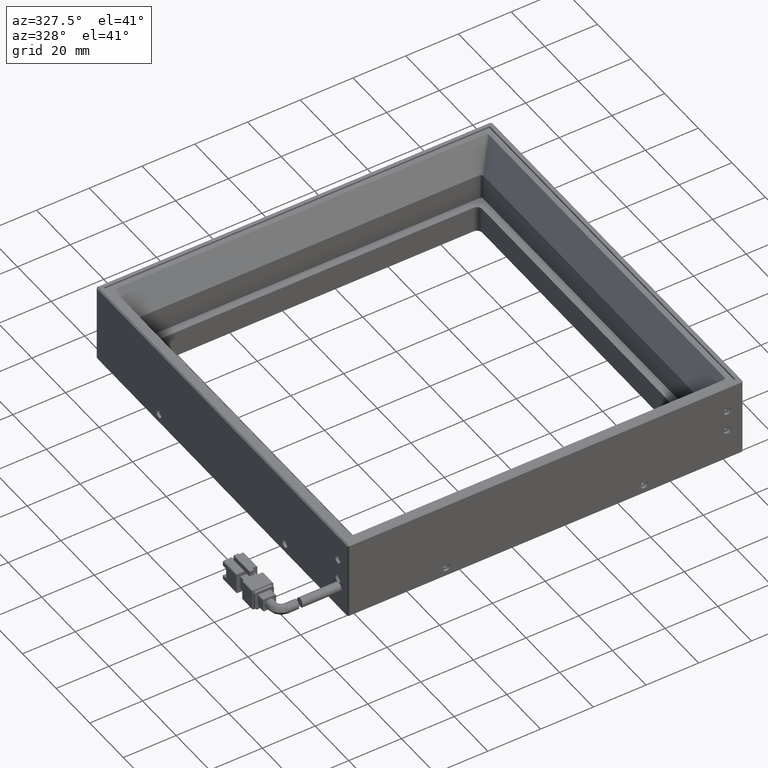
[diagram: clean part render]
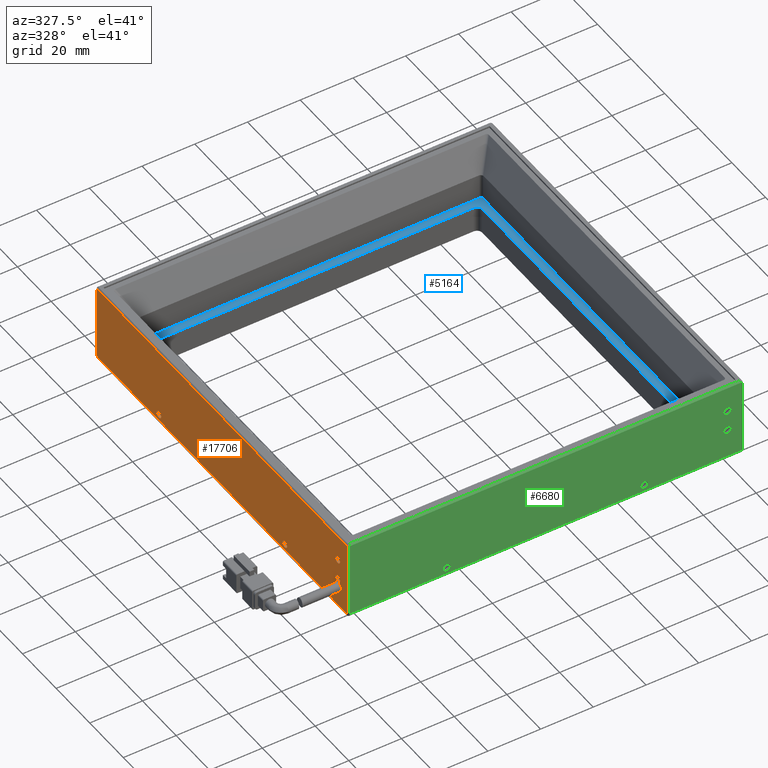
[diagram: same view with three faces highlighted in distinct colors, each labeled with its STEP entity id]
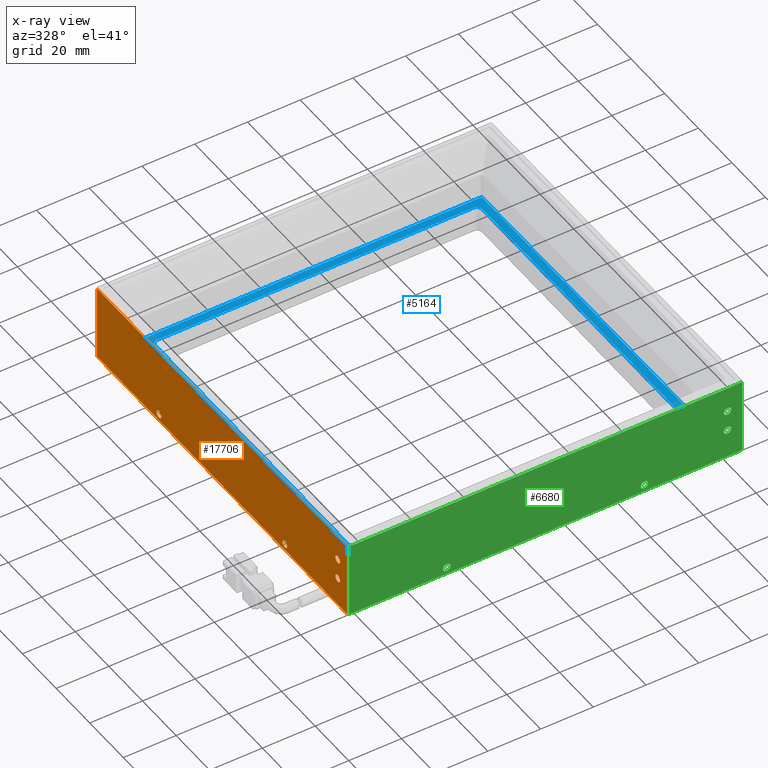
[diagram: x-ray of the same camera — body ghosted, the three highlighted faces saturated]
A machine part, auxiliary view with three faces highlighted in distinct colors.
The next image is the same camera in x-ray (body ghosted, the three faces saturated) — at least one of them is partly hidden behind the body in this view.
Their STEP definitions:

[orange] entity #17706 — the highlighted planar face has unit normal (1, -0, -0).
#393 = ORIENTED_EDGE ( 'NONE', *, *, #6799, .T. ) ;
#505 = CARTESIAN_POINT ( 'NONE',  ( -84.83175061932287500, -58.25061932287366100, 16.40000000000005500 ) ) ;
#970 = CARTESIAN_POINT ( 'NONE',  ( -84.83175061932288900, 48.24938067712633200, -1.499999999999942300 ) ) ;
#1053 = DIRECTION ( 'NONE',  ( -1.850371707708597500E-017, -1.000000000000000000, 0.0000000000000000000 ) ) ;
#1247 = DIRECTION ( 'NONE',  ( 0.0000000000000000000, 0.0000000000000000000, 1.000000000000000000 ) ) ;
#1317 = DIRECTION ( 'NONE',  ( -1.000000000000000000, -1.665334536937734600E-016, 0.0000000000000000000 ) ) ;
#1395 = CARTESIAN_POINT ( 'NONE',  ( -84.83175061932287500, -58.25061932287366100, 15.00000000000006200 ) ) ;
#1593 = AXIS2_PLACEMENT_3D ( 'NONE', #16673, #16606, #16443 ) ;
#1629 = DIRECTION ( 'NONE',  ( 0.0000000000000000000, 0.0000000000000000000, 1.000000000000000000 ) ) ;
#1833 = CIRCLE ( 'NONE', #19581, 1.399999999999991500 ) ;
#1950 = EDGE_LOOP ( 'NONE', ( #7730, #14834 ) ) ;
#2025 = CARTESIAN_POINT ( 'NONE',  ( -84.83175061932287500, -26.75061932287366800, -1.499999999999942300 ) ) ;
#2094 = EDGE_CURVE ( 'NONE', #7687, #20565, #20294, .T. ) ;
#2137 = CARTESIAN_POINT ( 'NONE',  ( -84.83175061932287500, 85.24938067712629700, -3.999999999999937800 ) ) ;
#2164 = VERTEX_POINT ( 'NONE', #18636 ) ;
#2362 = DIRECTION ( 'NONE',  ( 0.0000000000000000000, 0.0000000000000000000, 1.000000000000000000 ) ) ;
#2406 = CARTESIAN_POINT ( 'NONE',  ( -84.83175061932287500, 85.74938067712629700, -3.999999999999937800 ) ) ;
#2433 = DIRECTION ( 'NONE',  ( 1.665334536937734600E-016, -1.000000000000000000, -0.0000000000000000000 ) ) ;
#2488 = EDGE_LOOP ( 'NONE', ( #12058, #9845 ) ) ;
#2856 = ORIENTED_EDGE ( 'NONE', *, *, #3493, .F. ) ;
#3493 = EDGE_CURVE ( 'NONE', #20805, #12843, #21126, .T. ) ;
#3740 = DIRECTION ( 'NONE',  ( 0.0000000000000000000, 0.0000000000000000000, 1.000000000000000000 ) ) ;
#4072 = VERTEX_POINT ( 'NONE', #4802 ) ;
#4275 = FACE_BOUND ( 'NONE', #2488, .T. ) ;
#4362 = CARTESIAN_POINT ( 'NONE',  ( -84.83175061932287500, -26.75061932287366800, -0.09999999999995082300 ) ) ;
#4419 = VERTEX_POINT ( 'NONE', #18399 ) ;
#4802 = CARTESIAN_POINT ( 'NONE',  ( -84.83175061932287500, -58.25061932287366100, 5.600000000000067100 ) ) ;
#4868 = DIRECTION ( 'NONE',  ( -1.000000000000000000, -1.665334536937734600E-016, 0.0000000000000000000 ) ) ;
#4872 = EDGE_CURVE ( 'NONE', #16739, #9918, #6531, .T. ) ;
#5144 = CARTESIAN_POINT ( 'NONE',  ( -84.83175061932287500, -58.25061932287366100, 7.000000000000062200 ) ) ;
#5819 = EDGE_CURVE ( 'NONE', #9918, #16739, #6164, .T. ) ;
#6164 = CIRCLE ( 'NONE', #12648, 1.399999999999995000 ) ;
#6531 = CIRCLE ( 'NONE', #1593, 1.399999999999995000 ) ;
#6632 = EDGE_CURVE ( 'NONE', #6823, #20805, #15737, .T. ) ;
#6799 = EDGE_CURVE ( 'NONE', #6823, #2164, #17788, .T. ) ;
#6800 = VECTOR ( 'NONE', #15033, 1000.000000000000000 ) ;
#6823 = VERTEX_POINT ( 'NONE', #2137 ) ;
#6861 = DIRECTION ( 'NONE',  ( 0.0000000000000000000, 0.0000000000000000000, 1.000000000000000000 ) ) ;
#7653 = EDGE_CURVE ( 'NONE', #14814, #4072, #15654, .T. ) ;
#7687 = VERTEX_POINT ( 'NONE', #21048 ) ;
#7730 = ORIENTED_EDGE ( 'NONE', *, *, #15591, .F. ) ;
#7736 = ORIENTED_EDGE ( 'NONE', *, *, #7653, .F. ) ;
#8505 = CARTESIAN_POINT ( 'NONE',  ( -84.83175061932287500, -63.75061932287366800, -3.999999999999937800 ) ) ;
#8765 = FACE_BOUND ( 'NONE', #1950, .T. ) ;
#9371 = ORIENTED_EDGE ( 'NONE', *, *, #14551, .F. ) ;
#9492 = AXIS2_PLACEMENT_3D ( 'NONE', #21750, #11758, #1629 ) ;
#9845 = ORIENTED_EDGE ( 'NONE', *, *, #21769, .F. ) ;
#9918 = VERTEX_POINT ( 'NONE', #505 ) ;
#10208 = DIRECTION ( 'NONE',  ( 0.0000000000000000000, 0.0000000000000000000, -1.000000000000000000 ) ) ;
#11134 = CARTESIAN_POINT ( 'NONE',  ( -84.83175061932287500, -58.25061932287366100, 13.60000000000006700 ) ) ;
#11194 = DIRECTION ( 'NONE',  ( 1.000000000000000000, -1.850371707708597500E-017, -0.0000000000000000000 ) ) ;
#11382 = CARTESIAN_POINT ( 'NONE',  ( -84.83175061932288900, 48.24938067712633200, -2.899999999999940800 ) ) ;
#11473 = AXIS2_PLACEMENT_3D ( 'NONE', #2025, #13812, #3740 ) ;
#11758 = DIRECTION ( 'NONE',  ( -1.000000000000000000, -1.665334536937734600E-016, 0.0000000000000000000 ) ) ;
#11908 = CIRCLE ( 'NONE', #9492, 1.399999999999998600 ) ;
#12058 = ORIENTED_EDGE ( 'NONE', *, *, #2094, .F. ) ;
#12539 = CIRCLE ( 'NONE', #11473, 1.399999999999991500 ) ;
#12648 = AXIS2_PLACEMENT_3D ( 'NONE', #1395, #1317, #1247 ) ;
#12751 = CARTESIAN_POINT ( 'NONE',  ( -84.83175061932284700, -63.75061932287366800, 24.70000000000009500 ) ) ;
#12843 = VERTEX_POINT ( 'NONE', #12751 ) ;
#12861 = VECTOR ( 'NONE', #2433, 1000.000000000000000 ) ;
#13225 = FACE_OUTER_BOUND ( 'NONE', #13276, .T. ) ;
#13276 = EDGE_LOOP ( 'NONE', ( #2856, #17835, #393, #9371 ) ) ;
#13544 = ORIENTED_EDGE ( 'NONE', *, *, #5819, .F. ) ;
#13812 = DIRECTION ( 'NONE',  ( -1.000000000000000000, -1.665334536937734600E-016, 0.0000000000000000000 ) ) ;
#14345 = AXIS2_PLACEMENT_3D ( 'NONE', #20910, #20707, #20586 ) ;
#14385 = CARTESIAN_POINT ( 'NONE',  ( -84.83175061932287500, -58.25061932287366100, 8.400000000000057200 ) ) ;
#14409 = PLANE ( 'NONE',  #16028 ) ;
#14551 = EDGE_CURVE ( 'NONE', #12843, #2164, #19404, .T. ) ;
#14814 = VERTEX_POINT ( 'NONE', #14385 ) ;
#14834 = ORIENTED_EDGE ( 'NONE', *, *, #15142, .F. ) ;
#14920 = VECTOR ( 'NONE', #10208, 1000.000000000000000 ) ;
#14924 = CARTESIAN_POINT ( 'NONE',  ( -84.83175061932287500, -26.75061932287366800, -1.499999999999942300 ) ) ;
#15013 = CARTESIAN_POINT ( 'NONE',  ( -84.83175061932287500, 85.24938067712629700, -3.999999999999937800 ) ) ;
#15033 = DIRECTION ( 'NONE',  ( -0.0000000000000000000, -0.0000000000000000000, 1.000000000000000000 ) ) ;
#15142 = EDGE_CURVE ( 'NONE', #4419, #17759, #12539, .T. ) ;
#15591 = EDGE_CURVE ( 'NONE', #17759, #4419, #1833, .T. ) ;
#15609 = EDGE_LOOP ( 'NONE', ( #13544, #17867 ) ) ;
#15654 = CIRCLE ( 'NONE', #14345, 1.399999999999995000 ) ;
#15737 = LINE ( 'NONE', #15013, #6800 ) ;
#15804 = AXIS2_PLACEMENT_3D ( 'NONE', #970, #19079, #2362 ) ;
#16028 = AXIS2_PLACEMENT_3D ( 'NONE', #21185, #11194, #1053 ) ;
#16389 = EDGE_LOOP ( 'NONE', ( #7736, #18077 ) ) ;
#16443 = DIRECTION ( 'NONE',  ( 0.0000000000000000000, 0.0000000000000000000, 1.000000000000000000 ) ) ;
#16606 = DIRECTION ( 'NONE',  ( -1.000000000000000000, -1.665334536937734600E-016, 0.0000000000000000000 ) ) ;
#16618 = DIRECTION ( 'NONE',  ( 0.0000000000000000000, 0.0000000000000000000, 1.000000000000000000 ) ) ;
#16632 = VECTOR ( 'NONE', #20395, 1000.000000000000000 ) ;
#16673 = CARTESIAN_POINT ( 'NONE',  ( -84.83175061932287500, -58.25061932287366100, 15.00000000000006200 ) ) ;
#16739 = VERTEX_POINT ( 'NONE', #11134 ) ;
#16905 = DIRECTION ( 'NONE',  ( -1.000000000000000000, -1.665334536937734600E-016, 0.0000000000000000000 ) ) ;
#16954 = EDGE_CURVE ( 'NONE', #4072, #14814, #19314, .T. ) ;
#17642 = FACE_BOUND ( 'NONE', #15609, .T. ) ;
#17706 = ADVANCED_FACE ( 'NONE', ( #13225, #4275, #8765, #17642, #21611 ), #14409, .F. ) ;
#17759 = VERTEX_POINT ( 'NONE', #4362 ) ;
#17788 = LINE ( 'NONE', #2406, #12861 ) ;
#17835 = ORIENTED_EDGE ( 'NONE', *, *, #6632, .F. ) ;
#17867 = ORIENTED_EDGE ( 'NONE', *, *, #4872, .F. ) ;
#18077 = ORIENTED_EDGE ( 'NONE', *, *, #16954, .F. ) ;
#18399 = CARTESIAN_POINT ( 'NONE',  ( -84.83175061932287500, -26.75061932287366800, -2.899999999999933700 ) ) ;
#18568 = CARTESIAN_POINT ( 'NONE',  ( -84.83175061932287500, 85.24938067712629700, 24.70000000000009200 ) ) ;
#18636 = CARTESIAN_POINT ( 'NONE',  ( -84.83175061932284700, -63.75061932287366800, -3.999999999999937800 ) ) ;
#19079 = DIRECTION ( 'NONE',  ( -1.000000000000000000, -1.665334536937734600E-016, 0.0000000000000000000 ) ) ;
#19271 = AXIS2_PLACEMENT_3D ( 'NONE', #5144, #16905, #6861 ) ;
#19314 = CIRCLE ( 'NONE', #19271, 1.399999999999995000 ) ;
#19404 = LINE ( 'NONE', #8505, #14920 ) ;
#19581 = AXIS2_PLACEMENT_3D ( 'NONE', #14924, #4868, #16618 ) ;
#20294 = CIRCLE ( 'NONE', #15804, 1.399999999999998600 ) ;
#20395 = DIRECTION ( 'NONE',  ( -1.850371707708597500E-017, -1.000000000000000000, 0.0000000000000000000 ) ) ;
#20565 = VERTEX_POINT ( 'NONE', #11382 ) ;
#20586 = DIRECTION ( 'NONE',  ( 0.0000000000000000000, 0.0000000000000000000, 1.000000000000000000 ) ) ;
#20707 = DIRECTION ( 'NONE',  ( -1.000000000000000000, -1.665334536937734600E-016, 0.0000000000000000000 ) ) ;
#20805 = VERTEX_POINT ( 'NONE', #18568 ) ;
#20910 = CARTESIAN_POINT ( 'NONE',  ( -84.83175061932287500, -58.25061932287366100, 7.000000000000062200 ) ) ;
#21048 = CARTESIAN_POINT ( 'NONE',  ( -84.83175061932288900, 48.24938067712633200, -0.09999999999994366200 ) ) ;
#21126 = LINE ( 'NONE', #21755, #16632 ) ;
#21185 = CARTESIAN_POINT ( 'NONE',  ( -84.83175061932287500, -64.25061932287366100, -3.999999999999937800 ) ) ;
#21611 = FACE_BOUND ( 'NONE', #16389, .T. ) ;
#21750 = CARTESIAN_POINT ( 'NONE',  ( -84.83175061932288900, 48.24938067712633200, -1.499999999999942300 ) ) ;
#21755 = CARTESIAN_POINT ( 'NONE',  ( -84.83175061932287500, -64.25061932287366100, 24.70000000000009200 ) ) ;
#21769 = EDGE_CURVE ( 'NONE', #20565, #7687, #11908, .T. ) ;

[blue] entity #5164 — the highlighted planar face has unit normal (-0, 0, 1).
#629 = CARTESIAN_POINT ( 'NONE',  ( -69.83175061932287500, -49.25061932287366800, 5.000000000000061300 ) ) ;
#734 = FACE_OUTER_BOUND ( 'NONE', #4740, .T. ) ;
#834 = VERTEX_POINT ( 'NONE', #10461 ) ;
#886 = DIRECTION ( 'NONE',  ( 1.000000000000000000, 0.0000000000000000000, 0.0000000000000000000 ) ) ;
#1521 = CARTESIAN_POINT ( 'NONE',  ( 55.16824938067716000, -54.25061932287367500, 5.000000000000061300 ) ) ;
#1550 = CARTESIAN_POINT ( 'NONE',  ( -71.83175061932287500, -51.25061932287366800, 5.000000000000061300 ) ) ;
#1855 = ORIENTED_EDGE ( 'NONE', *, *, #3061, .F. ) ;
#1888 = CARTESIAN_POINT ( 'NONE',  ( -69.83175061932284700, 72.74938067712632500, 5.000000000000061300 ) ) ;
#2302 = DIRECTION ( 'NONE',  ( 1.000000000000000000, 0.0000000000000000000, 0.0000000000000000000 ) ) ;
#2554 = CARTESIAN_POINT ( 'NONE',  ( -74.83175061932286100, -54.25061932287367500, 5.000000000000061300 ) ) ;
#2748 = LINE ( 'NONE', #14880, #19580 ) ;
#3061 = EDGE_CURVE ( 'NONE', #16341, #10839, #19112, .T. ) ;
#3176 = CARTESIAN_POINT ( 'NONE',  ( 50.16824938067718200, 72.74938067712632500, 5.000000000000061300 ) ) ;
#3276 = CARTESIAN_POINT ( 'NONE',  ( -71.83175061932284700, 72.74938067712632500, 5.000000000000061300 ) ) ;
#3289 = DIRECTION ( 'NONE',  ( 1.000000000000000000, 0.0000000000000000000, -0.0000000000000000000 ) ) ;
#3765 = VECTOR ( 'NONE', #12660, 1000.000000000000000 ) ;
#3770 = AXIS2_PLACEMENT_3D ( 'NONE', #15370, #15008, #14932 ) ;
#3926 = EDGE_CURVE ( 'NONE', #21743, #15298, #6598, .T. ) ;
#4062 = CIRCLE ( 'NONE', #20011, 2.000000000000001800 ) ;
#4251 = CARTESIAN_POINT ( 'NONE',  ( 55.16824938067714600, 75.74938067712633900, 5.000000000000061300 ) ) ;
#4253 = ORIENTED_EDGE ( 'NONE', *, *, #20275, .F. ) ;
#4266 = LINE ( 'NONE', #3276, #21594 ) ;
#4431 = VERTEX_POINT ( 'NONE', #18315 ) ;
#4740 = EDGE_LOOP ( 'NONE', ( #8745, #12700, #17064, #11772 ) ) ;
#4764 = AXIS2_PLACEMENT_3D ( 'NONE', #21016, #11014, #886 ) ;
#5113 = VECTOR ( 'NONE', #7913, 1000.000000000000000 ) ;
#5164 = ADVANCED_FACE ( 'NONE', ( #13627, #734 ), #7789, .T. ) ;
#5498 = ORIENTED_EDGE ( 'NONE', *, *, #19022, .T. ) ;
#5509 = EDGE_CURVE ( 'NONE', #21743, #17511, #7806, .T. ) ;
#5531 = DIRECTION ( 'NONE',  ( 1.000000000000000000, 0.0000000000000000000, 0.0000000000000000000 ) ) ;
#5604 = DIRECTION ( 'NONE',  ( -0.0000000000000000000, 0.0000000000000000000, 1.000000000000000000 ) ) ;
#5745 = CARTESIAN_POINT ( 'NONE',  ( -74.83175061932284700, -54.25061932287367500, 5.000000000000061300 ) ) ;
#6598 = CIRCLE ( 'NONE', #3770, 2.000000000000001800 ) ;
#6702 = CIRCLE ( 'NONE', #21293, 2.000000000000001800 ) ;
#6945 = CARTESIAN_POINT ( 'NONE',  ( -69.83175061932284700, 70.74938067712632500, 5.000000000000061300 ) ) ;
#7300 = EDGE_LOOP ( 'NONE', ( #8527, #20093, #13757, #11932, #4253, #5498, #1855, #18701 ) ) ;
#7789 = PLANE ( 'NONE',  #12090 ) ;
#7806 = LINE ( 'NONE', #20713, #12314 ) ;
#7913 = DIRECTION ( 'NONE',  ( -1.000000000000000000, -0.0000000000000000000, -0.0000000000000000000 ) ) ;
#8527 = ORIENTED_EDGE ( 'NONE', *, *, #5509, .F. ) ;
#8546 = LINE ( 'NONE', #1550, #16906 ) ;
#8655 = DIRECTION ( 'NONE',  ( 1.000000000000000000, 0.0000000000000000000, 0.0000000000000000000 ) ) ;
#8745 = ORIENTED_EDGE ( 'NONE', *, *, #11545, .T. ) ;
#9465 = VERTEX_POINT ( 'NONE', #20518 ) ;
#9603 = LINE ( 'NONE', #1521, #18491 ) ;
#10461 = CARTESIAN_POINT ( 'NONE',  ( 55.16824938067714600, -54.25061932287367500, 5.000000000000061300 ) ) ;
#10839 = VERTEX_POINT ( 'NONE', #1888 ) ;
#11014 = DIRECTION ( 'NONE',  ( -0.0000000000000000000, -0.0000000000000000000, -1.000000000000000000 ) ) ;
#11034 = EDGE_CURVE ( 'NONE', #14537, #834, #2748, .T. ) ;
#11545 = EDGE_CURVE ( 'NONE', #834, #21054, #9603, .T. ) ;
#11772 = ORIENTED_EDGE ( 'NONE', *, *, #11034, .T. ) ;
#11865 = EDGE_CURVE ( 'NONE', #4431, #14537, #17117, .T. ) ;
#11932 = ORIENTED_EDGE ( 'NONE', *, *, #17108, .T. ) ;
#12090 = AXIS2_PLACEMENT_3D ( 'NONE', #5745, #5604, #5531 ) ;
#12314 = VECTOR ( 'NONE', #14227, 1000.000000000000000 ) ;
#12419 = DIRECTION ( 'NONE',  ( 0.0000000000000000000, -0.0000000000000000000, -1.000000000000000000 ) ) ;
#12486 = EDGE_CURVE ( 'NONE', #19313, #15298, #8546, .T. ) ;
#12660 = DIRECTION ( 'NONE',  ( -0.0000000000000000000, -1.000000000000000000, 0.0000000000000000000 ) ) ;
#12700 = ORIENTED_EDGE ( 'NONE', *, *, #19387, .T. ) ;
#13243 = DIRECTION ( 'NONE',  ( 0.0000000000000000000, 1.000000000000000000, -0.0000000000000000000 ) ) ;
#13353 = CIRCLE ( 'NONE', #4764, 2.000000000000001800 ) ;
#13573 = LINE ( 'NONE', #19648, #5113 ) ;
#13627 = FACE_BOUND ( 'NONE', #7300, .T. ) ;
#13757 = ORIENTED_EDGE ( 'NONE', *, *, #12486, .F. ) ;
#14227 = DIRECTION ( 'NONE',  ( 0.0000000000000000000, 1.000000000000000000, -0.0000000000000000000 ) ) ;
#14537 = VERTEX_POINT ( 'NONE', #15145 ) ;
#14760 = EDGE_CURVE ( 'NONE', #16341, #17511, #13353, .T. ) ;
#14880 = CARTESIAN_POINT ( 'NONE',  ( -74.83175061932284700, -54.25061932287367500, 5.000000000000061300 ) ) ;
#14932 = DIRECTION ( 'NONE',  ( 1.000000000000000000, 0.0000000000000000000, 0.0000000000000000000 ) ) ;
#15008 = DIRECTION ( 'NONE',  ( -0.0000000000000000000, 0.0000000000000000000, -1.000000000000000000 ) ) ;
#15028 = DIRECTION ( 'NONE',  ( 1.000000000000000000, 0.0000000000000000000, 0.0000000000000000000 ) ) ;
#15062 = DIRECTION ( 'NONE',  ( -1.678764654171104000E-016, -1.000000000000000000, -0.0000000000000000000 ) ) ;
#15145 = CARTESIAN_POINT ( 'NONE',  ( -74.83175061932284700, -54.25061932287367500, 5.000000000000061300 ) ) ;
#15298 = VERTEX_POINT ( 'NONE', #20782 ) ;
#15370 = CARTESIAN_POINT ( 'NONE',  ( 50.16824938067719600, -49.25061932287366800, 5.000000000000061300 ) ) ;
#16341 = VERTEX_POINT ( 'NONE', #3176 ) ;
#16450 = VERTEX_POINT ( 'NONE', #16927 ) ;
#16906 = VECTOR ( 'NONE', #3289, 1000.000000000000000 ) ;
#16927 = CARTESIAN_POINT ( 'NONE',  ( -71.83175061932284700, 70.74938067712632500, 5.000000000000061300 ) ) ;
#17064 = ORIENTED_EDGE ( 'NONE', *, *, #11865, .T. ) ;
#17108 = EDGE_CURVE ( 'NONE', #19313, #9465, #4062, .T. ) ;
#17117 = LINE ( 'NONE', #2554, #3765 ) ;
#17511 = VERTEX_POINT ( 'NONE', #20642 ) ;
#17760 = CARTESIAN_POINT ( 'NONE',  ( -69.83175061932286100, -51.25061932287366800, 5.000000000000061300 ) ) ;
#17946 = DIRECTION ( 'NONE',  ( -1.000000000000000000, -0.0000000000000000000, -0.0000000000000000000 ) ) ;
#18018 = CARTESIAN_POINT ( 'NONE',  ( -71.83175061932284700, 72.74938067712632500, 5.000000000000061300 ) ) ;
#18315 = CARTESIAN_POINT ( 'NONE',  ( -74.83175061932286100, 75.74938067712633900, 5.000000000000061300 ) ) ;
#18491 = VECTOR ( 'NONE', #13243, 1000.000000000000000 ) ;
#18577 = VECTOR ( 'NONE', #17946, 1000.000000000000000 ) ;
#18701 = ORIENTED_EDGE ( 'NONE', *, *, #14760, .T. ) ;
#18704 = DIRECTION ( 'NONE',  ( -0.0000000000000000000, -0.0000000000000000000, -1.000000000000000000 ) ) ;
#19022 = EDGE_CURVE ( 'NONE', #16450, #10839, #6702, .T. ) ;
#19112 = LINE ( 'NONE', #18018, #18577 ) ;
#19313 = VERTEX_POINT ( 'NONE', #17760 ) ;
#19387 = EDGE_CURVE ( 'NONE', #21054, #4431, #13573, .T. ) ;
#19580 = VECTOR ( 'NONE', #15028, 1000.000000000000000 ) ;
#19648 = CARTESIAN_POINT ( 'NONE',  ( -74.83175061932284700, 75.74938067712633900, 5.000000000000061300 ) ) ;
#20011 = AXIS2_PLACEMENT_3D ( 'NONE', #629, #12419, #2302 ) ;
#20093 = ORIENTED_EDGE ( 'NONE', *, *, #3926, .T. ) ;
#20275 = EDGE_CURVE ( 'NONE', #16450, #9465, #4266, .T. ) ;
#20518 = CARTESIAN_POINT ( 'NONE',  ( -71.83175061932287500, -49.25061932287366800, 5.000000000000061300 ) ) ;
#20642 = CARTESIAN_POINT ( 'NONE',  ( 52.16824938067718200, 70.74938067712632500, 5.000000000000061300 ) ) ;
#20713 = CARTESIAN_POINT ( 'NONE',  ( 52.16824938067718200, 72.74938067712632500, 5.000000000000061300 ) ) ;
#20782 = CARTESIAN_POINT ( 'NONE',  ( 50.16824938067719600, -51.25061932287366800, 5.000000000000061300 ) ) ;
#21016 = CARTESIAN_POINT ( 'NONE',  ( 50.16824938067718200, 70.74938067712632500, 5.000000000000061300 ) ) ;
#21054 = VERTEX_POINT ( 'NONE', #4251 ) ;
#21293 = AXIS2_PLACEMENT_3D ( 'NONE', #6945, #18704, #8655 ) ;
#21594 = VECTOR ( 'NONE', #15062, 1000.000000000000000 ) ;
#21685 = CARTESIAN_POINT ( 'NONE',  ( 52.16824938067718200, -49.25061932287366800, 5.000000000000061300 ) ) ;
#21743 = VERTEX_POINT ( 'NONE', #21685 ) ;

[green] entity #6680 — the highlighted planar face has unit normal (-0, 1, 0).
#45 = PLANE ( 'NONE',  #19846 ) ;
#319 = CARTESIAN_POINT ( 'NONE',  ( 65.16824938067712500, -64.25061932287364600, -3.999999999999937800 ) ) ;
#339 = DIRECTION ( 'NONE',  ( -1.665334536937734600E-016, 1.000000000000000000, 0.0000000000000000000 ) ) ;
#362 = DIRECTION ( 'NONE',  ( 1.665334536937734600E-016, -1.000000000000000000, 0.0000000000000000000 ) ) ;
#365 = DIRECTION ( 'NONE',  ( 0.0000000000000000000, 0.0000000000000000000, -1.000000000000000000 ) ) ;
#627 = ORIENTED_EDGE ( 'NONE', *, *, #9710, .F. ) ;
#871 = DIRECTION ( 'NONE',  ( 1.000000000000000000, 1.665334536937734600E-016, 0.0000000000000000000 ) ) ;
#1216 = ORIENTED_EDGE ( 'NONE', *, *, #11862, .F. ) ;
#1235 = CARTESIAN_POINT ( 'NONE',  ( -84.33175061932284700, -64.25061932287366100, -3.999999999999937800 ) ) ;
#1779 = CARTESIAN_POINT ( 'NONE',  ( 65.16824938067712500, -64.25061932287364600, 24.70000000000009200 ) ) ;
#1809 = DIRECTION ( 'NONE',  ( 1.000000000000000000, 1.665334536937734600E-016, -0.0000000000000000000 ) ) ;
#1937 = ORIENTED_EDGE ( 'NONE', *, *, #16375, .F. ) ;
#2023 = VECTOR ( 'NONE', #18333, 1000.000000000000000 ) ;
#2065 = CIRCLE ( 'NONE', #21505, 1.399999999999995000 ) ;
#2810 = EDGE_CURVE ( 'NONE', #20653, #9635, #7847, .T. ) ;
#2885 = ORIENTED_EDGE ( 'NONE', *, *, #18614, .T. ) ;
#3612 = VECTOR ( 'NONE', #871, 1000.000000000000000 ) ;
#3635 = EDGE_LOOP ( 'NONE', ( #1216, #7451 ) ) ;
#3705 = DIRECTION ( 'NONE',  ( 1.665334536937734600E-016, -1.000000000000000000, 0.0000000000000000000 ) ) ;
#3823 = CIRCLE ( 'NONE', #4225, 1.399999999999995000 ) ;
#4083 = DIRECTION ( 'NONE',  ( 0.0000000000000000000, 0.0000000000000000000, 1.000000000000000000 ) ) ;
#4109 = VERTEX_POINT ( 'NONE', #7991 ) ;
#4225 = AXIS2_PLACEMENT_3D ( 'NONE', #10447, #362, #12136 ) ;
#4390 = CARTESIAN_POINT ( 'NONE',  ( -47.33175061932287500, -64.25061932287364600, -1.499999999999942300 ) ) ;
#4891 = CARTESIAN_POINT ( 'NONE',  ( -47.33175061932287500, -64.25061932287364600, -0.09999999999994366200 ) ) ;
#5105 = ORIENTED_EDGE ( 'NONE', *, *, #5656, .F. ) ;
#5224 = CARTESIAN_POINT ( 'NONE',  ( 59.16824938067712500, -64.25061932287364600, 7.000000000000062200 ) ) ;
#5656 = EDGE_CURVE ( 'NONE', #16255, #15923, #20937, .T. ) ;
#5699 = FACE_BOUND ( 'NONE', #17033, .T. ) ;
#5873 = DIRECTION ( 'NONE',  ( 1.665334536937734600E-016, -1.000000000000000000, 0.0000000000000000000 ) ) ;
#6263 = EDGE_CURVE ( 'NONE', #15923, #16255, #14440, .T. ) ;
#6330 = CARTESIAN_POINT ( 'NONE',  ( 59.16824938067712500, -64.25061932287364600, 8.400000000000057200 ) ) ;
#6480 = LINE ( 'NONE', #21723, #2023 ) ;
#6680 = ADVANCED_FACE ( 'NONE', ( #19165, #10796, #14676, #10278, #5699 ), #45, .F. ) ;
#6939 = DIRECTION ( 'NONE',  ( 0.0000000000000000000, 0.0000000000000000000, 1.000000000000000000 ) ) ;
#7152 = AXIS2_PLACEMENT_3D ( 'NONE', #19544, #19999, #11431 ) ;
#7451 = ORIENTED_EDGE ( 'NONE', *, *, #2810, .F. ) ;
#7501 = CARTESIAN_POINT ( 'NONE',  ( 59.16824938067712500, -64.25061932287364600, 13.60000000000006700 ) ) ;
#7847 = CIRCLE ( 'NONE', #12763, 1.399999999999998600 ) ;
#7921 = LINE ( 'NONE', #1235, #15771 ) ;
#7991 = CARTESIAN_POINT ( 'NONE',  ( 64.66824938067712500, -64.25061932287364600, -3.999999999999937800 ) ) ;
#8045 = LINE ( 'NONE', #1779, #16401 ) ;
#8373 = CARTESIAN_POINT ( 'NONE',  ( 59.16824938067712500, -64.25061932287364600, 7.000000000000062200 ) ) ;
#8648 = CARTESIAN_POINT ( 'NONE',  ( 59.16824938067712500, -64.25061932287364600, 5.600000000000067100 ) ) ;
#8939 = VERTEX_POINT ( 'NONE', #8648 ) ;
#9635 = VERTEX_POINT ( 'NONE', #4891 ) ;
#9710 = EDGE_CURVE ( 'NONE', #18235, #12928, #2065, .T. ) ;
#9738 = CARTESIAN_POINT ( 'NONE',  ( 27.66824938067712800, -64.25061932287364600, -2.899999999999937300 ) ) ;
#9879 = CARTESIAN_POINT ( 'NONE',  ( -47.33175061932287500, -64.25061932287364600, -2.899999999999940800 ) ) ;
#10074 = DIRECTION ( 'NONE',  ( 0.0000000000000000000, 0.0000000000000000000, 1.000000000000000000 ) ) ;
#10278 = FACE_BOUND ( 'NONE', #14057, .T. ) ;
#10381 = CIRCLE ( 'NONE', #13402, 1.399999999999995000 ) ;
#10447 = CARTESIAN_POINT ( 'NONE',  ( 27.66824938067712800, -64.25061932287364600, -1.499999999999942300 ) ) ;
#10670 = EDGE_LOOP ( 'NONE', ( #12436, #18621, #2885, #1937 ) ) ;
#10796 = FACE_BOUND ( 'NONE', #3635, .T. ) ;
#10854 = EDGE_CURVE ( 'NONE', #21585, #14017, #8045, .T. ) ;
#10996 = CARTESIAN_POINT ( 'NONE',  ( 65.16824938067713900, -64.25061932287364600, -3.999999999999937800 ) ) ;
#11107 = AXIS2_PLACEMENT_3D ( 'NONE', #15966, #5873, #17649 ) ;
#11431 = DIRECTION ( 'NONE',  ( 0.0000000000000000000, 0.0000000000000000000, 1.000000000000000000 ) ) ;
#11862 = EDGE_CURVE ( 'NONE', #9635, #20653, #12726, .T. ) ;
#11966 = AXIS2_PLACEMENT_3D ( 'NONE', #12257, #12183, #12108 ) ;
#12108 = DIRECTION ( 'NONE',  ( 0.0000000000000000000, 0.0000000000000000000, 1.000000000000000000 ) ) ;
#12136 = DIRECTION ( 'NONE',  ( 0.0000000000000000000, 0.0000000000000000000, 1.000000000000000000 ) ) ;
#12183 = DIRECTION ( 'NONE',  ( 1.665334536937734600E-016, -1.000000000000000000, 0.0000000000000000000 ) ) ;
#12257 = CARTESIAN_POINT ( 'NONE',  ( 59.16824938067712500, -64.25061932287364600, 15.00000000000006200 ) ) ;
#12436 = ORIENTED_EDGE ( 'NONE', *, *, #10854, .F. ) ;
#12576 = LINE ( 'NONE', #10996, #3612 ) ;
#12726 = CIRCLE ( 'NONE', #11107, 1.399999999999998600 ) ;
#12763 = AXIS2_PLACEMENT_3D ( 'NONE', #4390, #3705, #4083 ) ;
#12928 = VERTEX_POINT ( 'NONE', #9738 ) ;
#13363 = CARTESIAN_POINT ( 'NONE',  ( 64.66824938067711100, -64.25061932287364600, 24.70000000000008500 ) ) ;
#13402 = AXIS2_PLACEMENT_3D ( 'NONE', #8373, #20137, #10074 ) ;
#14017 = VERTEX_POINT ( 'NONE', #13363 ) ;
#14034 = ORIENTED_EDGE ( 'NONE', *, *, #21261, .F. ) ;
#14057 = EDGE_LOOP ( 'NONE', ( #5105, #20408 ) ) ;
#14302 = ORIENTED_EDGE ( 'NONE', *, *, #17386, .F. ) ;
#14440 = CIRCLE ( 'NONE', #7152, 1.399999999999995000 ) ;
#14669 = DIRECTION ( 'NONE',  ( -0.0000000000000000000, -0.0000000000000000000, 1.000000000000000000 ) ) ;
#14676 = FACE_BOUND ( 'NONE', #20647, .T. ) ;
#14680 = CARTESIAN_POINT ( 'NONE',  ( 27.66824938067712800, -64.25061932287364600, -0.09999999999994735300 ) ) ;
#15538 = VERTEX_POINT ( 'NONE', #6330 ) ;
#15771 = VECTOR ( 'NONE', #14669, 1000.000000000000000 ) ;
#15923 = VERTEX_POINT ( 'NONE', #7501 ) ;
#15966 = CARTESIAN_POINT ( 'NONE',  ( -47.33175061932287500, -64.25061932287364600, -1.499999999999942300 ) ) ;
#16091 = CARTESIAN_POINT ( 'NONE',  ( -84.33175061932288900, -64.25061932287366100, 24.70000000000009200 ) ) ;
#16255 = VERTEX_POINT ( 'NONE', #19615 ) ;
#16375 = EDGE_CURVE ( 'NONE', #14017, #4109, #6480, .T. ) ;
#16401 = VECTOR ( 'NONE', #1809, 1000.000000000000000 ) ;
#16978 = DIRECTION ( 'NONE',  ( 1.665334536937734600E-016, -1.000000000000000000, 0.0000000000000000000 ) ) ;
#16994 = EDGE_CURVE ( 'NONE', #12928, #18235, #3823, .T. ) ;
#17033 = EDGE_LOOP ( 'NONE', ( #14034, #14302 ) ) ;
#17386 = EDGE_CURVE ( 'NONE', #8939, #15538, #19276, .T. ) ;
#17649 = DIRECTION ( 'NONE',  ( 0.0000000000000000000, 0.0000000000000000000, 1.000000000000000000 ) ) ;
#17982 = AXIS2_PLACEMENT_3D ( 'NONE', #5224, #16978, #6939 ) ;
#18235 = VERTEX_POINT ( 'NONE', #14680 ) ;
#18333 = DIRECTION ( 'NONE',  ( 0.0000000000000000000, 0.0000000000000000000, -1.000000000000000000 ) ) ;
#18614 = EDGE_CURVE ( 'NONE', #19274, #4109, #12576, .T. ) ;
#18621 = ORIENTED_EDGE ( 'NONE', *, *, #20567, .F. ) ;
#18670 = ORIENTED_EDGE ( 'NONE', *, *, #16994, .F. ) ;
#19165 = FACE_OUTER_BOUND ( 'NONE', #10670, .T. ) ;
#19274 = VERTEX_POINT ( 'NONE', #21050 ) ;
#19276 = CIRCLE ( 'NONE', #17982, 1.399999999999995000 ) ;
#19513 = DIRECTION ( 'NONE',  ( 0.0000000000000000000, 0.0000000000000000000, 1.000000000000000000 ) ) ;
#19544 = CARTESIAN_POINT ( 'NONE',  ( 59.16824938067712500, -64.25061932287364600, 15.00000000000006200 ) ) ;
#19615 = CARTESIAN_POINT ( 'NONE',  ( 59.16824938067712500, -64.25061932287364600, 16.40000000000005500 ) ) ;
#19714 = DIRECTION ( 'NONE',  ( 1.665334536937734600E-016, -1.000000000000000000, 0.0000000000000000000 ) ) ;
#19769 = CARTESIAN_POINT ( 'NONE',  ( 27.66824938067712800, -64.25061932287364600, -1.499999999999942300 ) ) ;
#19846 = AXIS2_PLACEMENT_3D ( 'NONE', #319, #339, #365 ) ;
#19999 = DIRECTION ( 'NONE',  ( 1.665334536937734600E-016, -1.000000000000000000, 0.0000000000000000000 ) ) ;
#20137 = DIRECTION ( 'NONE',  ( 1.665334536937734600E-016, -1.000000000000000000, 0.0000000000000000000 ) ) ;
#20408 = ORIENTED_EDGE ( 'NONE', *, *, #6263, .F. ) ;
#20567 = EDGE_CURVE ( 'NONE', #19274, #21585, #7921, .T. ) ;
#20647 = EDGE_LOOP ( 'NONE', ( #627, #18670 ) ) ;
#20653 = VERTEX_POINT ( 'NONE', #9879 ) ;
#20937 = CIRCLE ( 'NONE', #11966, 1.399999999999995000 ) ;
#21050 = CARTESIAN_POINT ( 'NONE',  ( -84.33175061932284700, -64.25061932287366100, -3.999999999999937800 ) ) ;
#21261 = EDGE_CURVE ( 'NONE', #15538, #8939, #10381, .T. ) ;
#21505 = AXIS2_PLACEMENT_3D ( 'NONE', #19769, #19714, #19513 ) ;
#21585 = VERTEX_POINT ( 'NONE', #16091 ) ;
#21723 = CARTESIAN_POINT ( 'NONE',  ( 64.66824938067712500, -64.25061932287364600, -3.999999999999937800 ) ) ;